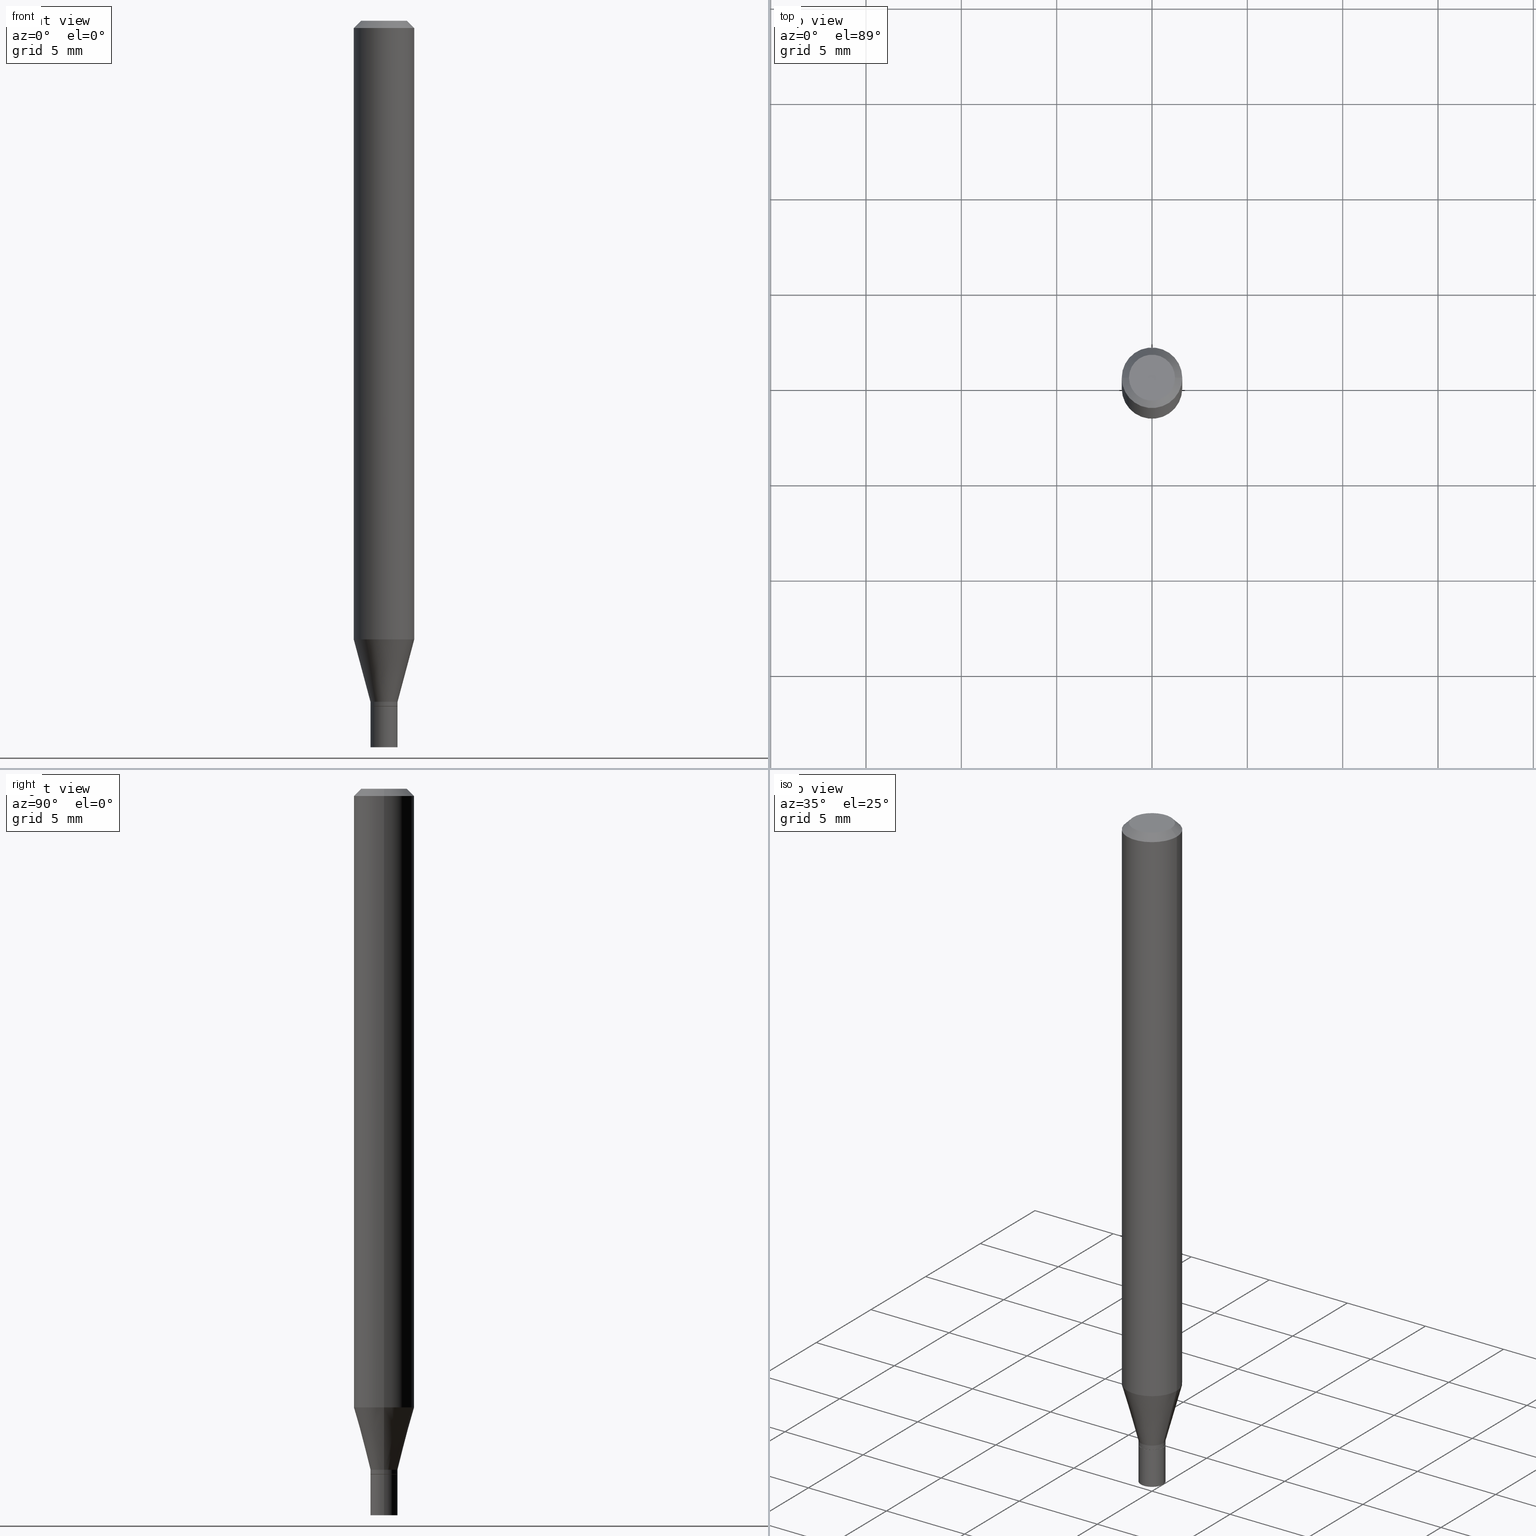
[diagram: canonical four-view strip — front | top / right | iso, engineering-drawing reading convention]
A machine part, canonical four-view strip (front | top / right | iso — engineering-drawing reading convention). The complete STEP part file that produces these views, byte-faithful:
ISO-10303-21;
HEADER;
FILE_DESCRIPTION (( 'STEP AP203' ),
    '1' );
FILE_NAME ('02383.STEP',
    '2024-03-18T20:19:42',
    ( '' ),
    ( '' ),
    'SwSTEP 2.0',
    'SolidWorks 2023',
    '' );
FILE_SCHEMA (( 'CONFIG_CONTROL_DESIGN' ));
ENDSEC;

DATA;
#1 = FACE_OUTER_BOUND ( 'NONE', #115, .T. ) ;
#2 = VERTEX_POINT ( 'NONE', #224 ) ;
#3 = AXIS2_PLACEMENT_3D ( 'NONE', #36, #214, #8 ) ;
#4 = CC_DESIGN_PERSON_AND_ORGANIZATION_ASSIGNMENT ( #267, #231, ( #449 ) ) ;
#5 = ORIENTED_EDGE ( 'NONE', *, *, #314, .T. ) ;
#6 = DIRECTION ( 'NONE',  ( -2.445468806185136597E-29, 3.491481338843145583E-15, 1.000000000000000000 ) ) ;
#7 = ORIENTED_EDGE ( 'NONE', *, *, #46, .F. ) ;
#8 = DIRECTION ( 'NONE',  ( 1.000000000000000000, -6.982962677686282488E-15, 0.000000000000000000 ) ) ;
#9 = EDGE_CURVE ( 'NONE', #343, #141, #258, .T. ) ;
#10 = VERTEX_POINT ( 'NONE', #296 ) ;
#11 = AXIS2_PLACEMENT_3D ( 'NONE', #286, #392, #243 ) ;
#12 = CYLINDRICAL_SURFACE ( 'NONE', #31, 0.02799999999999993119 ) ;
#13 = DIRECTION ( 'NONE',  ( -2.445468806185136597E-29, 3.491481338843145583E-15, 1.000000000000000000 ) ) ;
#14 = CALENDAR_DATE ( 2024, 18, 3 ) ;
#15 = LINE ( 'NONE', #414, #88 ) ;
#16 = DATE_TIME_ROLE ( 'creation_date' ) ;
#17 = DIRECTION ( 'NONE',  ( 1.000000000000000000, -6.982962677686280910E-15, 0.000000000000000000 ) ) ;
#18 = EDGE_CURVE ( 'NONE', #299, #333, #218, .T. ) ;
#19 = AXIS2_PLACEMENT_3D ( 'NONE', #268, #403, #73 ) ;
#20 = CIRCLE ( 'NONE', #260, 0.02799999999999993119 ) ;
#21 = DIRECTION ( 'NONE',  ( -2.445468806185136597E-29, 3.491481338843145583E-15, 1.000000000000000000 ) ) ;
#22 = DIRECTION ( 'NONE',  ( 1.000000000000000000, -6.982962677686262766E-15, 0.000000000000000000 ) ) ;
#23 = CARTESIAN_POINT ( 'NONE',  ( 3.316907271900976096E-16, 0.04749999999999999362, -1.076740139133766305E-16 ) ) ;
#24 = DIRECTION ( 'NONE',  ( 1.000000000000000000, -6.982962677686266711E-15, 4.876176775795935793E-29 ) ) ;
#25 = AXIS2_PLACEMENT_3D ( 'NONE', #239, #415, #234 ) ;
#26 = CARTESIAN_POINT ( 'NONE',  ( -2.845124421204368749E-45, 4.062083637377592914E-31, 1.163426993633455566E-16 ) ) ;
#27 = ORIENTED_EDGE ( 'NONE', *, *, #38, .F. ) ;
#28 = DIRECTION ( 'NONE',  ( -2.445468806185136597E-29, 3.491481338843145583E-15, 1.000000000000000000 ) ) ;
#29 = APPROVAL ( #156, 'UNSPECIFIED' ) ;
#30 = FACE_OUTER_BOUND ( 'NONE', #205, .T. ) ;
#31 = AXIS2_PLACEMENT_3D ( 'NONE', #404, #150, #335 ) ;
#32 = DIRECTION ( 'NONE',  ( -2.445468806185136877E-29, 3.491481338843145188E-15, 1.000000000000000000 ) ) ;
#33 = ORIENTED_EDGE ( 'NONE', *, *, #128, .F. ) ;
#34 = EDGE_LOOP ( 'NONE', ( #253, #379, #65, #97 ) ) ;
#35 = AXIS2_PLACEMENT_3D ( 'NONE', #345, #315, #160 ) ;
#36 = CARTESIAN_POINT ( 'NONE',  ( 3.461561095155061243E-29, -4.942191835132473030E-15, -1.415500000000000203 ) ) ;
#37 = VERTEX_POINT ( 'NONE', #221 ) ;
#38 = EDGE_CURVE ( 'NONE', #343, #37, #15, .T. ) ;
#39 = MECHANICAL_CONTEXT ( 'NONE', #371, 'mechanical' ) ;
#40 = ORIENTED_EDGE ( 'NONE', *, *, #402, .F. ) ;
#41 = VERTEX_POINT ( 'NONE', #84 ) ;
#42 = PERSON_AND_ORGANIZATION_ROLE ( 'creator' ) ;
#43 = ORIENTED_EDGE ( 'NONE', *, *, #389, .T. ) ;
#44 = APPROVAL_STATUS ( 'not_yet_approved' ) ;
#45 = CARTESIAN_POINT ( 'NONE',  ( 0.000000000000000000, 0.000000000000000000, 0.000000000000000000 ) ) ;
#46 = EDGE_CURVE ( 'NONE', #227, #2, #380, .T. ) ;
#47 = EDGE_CURVE ( 'NONE', #299, #440, #417, .T. ) ;
#48 = APPROVAL_DATE_TIME ( #452, #308 ) ;
#49 = DIRECTION ( 'NONE',  ( 1.000000000000000000, -6.982962677686262766E-15, 0.000000000000000000 ) ) ;
#50 = LOCAL_TIME ( 16, 19, 42.00000000000000000, #316 ) ;
#51 = AXIS2_PLACEMENT_3D ( 'NONE', #62, #28, #211 ) ;
#52 = APPROVAL_STATUS ( 'not_yet_approved' ) ;
#53 = DIRECTION ( 'NONE',  ( -2.445468806185136597E-29, 3.491481338843145583E-15, 1.000000000000000000 ) ) ;
#54 = DATE_AND_TIME ( #413, #50 ) ;
#55 = FACE_OUTER_BOUND ( 'NONE', #213, .T. ) ;
#56 = DIRECTION ( 'NONE',  ( -0.7071067811865447972, 2.468850131082228662E-15, -0.7071067811865501263 ) ) ;
#57 = CC_DESIGN_DATE_AND_TIME_ASSIGNMENT ( #54, #235, ( #289 ) ) ;
#58 = CYLINDRICAL_SURFACE ( 'NONE', #278, 0.06250000000000000000 ) ;
#59 = CIRCLE ( 'NONE', #74, 0.06250000000000000000 ) ;
#60 = DESIGN_CONTEXT ( 'detailed design', #101, 'design' ) ;
#61 = ORIENTED_EDGE ( 'NONE', *, *, #463, .F. ) ;
#62 = CARTESIAN_POINT ( 'NONE',  ( 3.462783829558154044E-29, -4.943937575801894533E-15, -1.416000000000000147 ) ) ;
#63 = CC_DESIGN_PERSON_AND_ORGANIZATION_ASSIGNMENT ( #83, #192, ( #289 ) ) ;
#64 = CARTESIAN_POINT ( 'NONE',  ( 3.438329141496302499E-29, -4.909022762413463673E-15, -1.406000000000000139 ) ) ;
#65 = ORIENTED_EDGE ( 'NONE', *, *, #18, .F. ) ;
#66 = DIRECTION ( 'NONE',  ( 0.7071067811865447972, -7.319954787623245001E-15, -0.7071067811865501263 ) ) ;
#67 = AXIS2_PLACEMENT_3D ( 'NONE', #288, #427, #204 ) ;
#68 = MANIFOLD_SOLID_BREP ( 'Body-Move/Copy2[2]', #181 ) ;
#69 = DIRECTION ( 'NONE',  ( 1.000000000000000000, -6.982962677686262766E-15, 0.000000000000000000 ) ) ;
#70 = CARTESIAN_POINT ( 'NONE',  ( 3.461561095155061243E-29, -4.942191835132473030E-15, -1.415500000000000203 ) ) ;
#71 = ORIENTED_EDGE ( 'NONE', *, *, #389, .F. ) ;
#72 = CARTESIAN_POINT ( 'NONE',  ( 1.955229549752501107E-16, 0.02799999999999506009, -1.416000000000000147 ) ) ;
#73 = DIRECTION ( 'NONE',  ( 1.000000000000000000, -6.982962677686280910E-15, 0.000000000000000000 ) ) ;
#74 = AXIS2_PLACEMENT_3D ( 'NONE', #384, #53, #22 ) ;
#75 = CIRCLE ( 'NONE', #51, 0.02750000000000000014 ) ;
#76 = VERTEX_POINT ( 'NONE', #443 ) ;
#77 = ORIENTED_EDGE ( 'NONE', *, *, #331, .T. ) ;
#78 = PERSON_AND_ORGANIZATION ( #293, #173 ) ;
#79 = EDGE_LOOP ( 'NONE', ( #410, #338, #292, #105 ) ) ;
#80 = CIRCLE ( 'NONE', #220, 0.06250000000000000000 ) ;
#81 = FACE_OUTER_BOUND ( 'NONE', #357, .T. ) ;
#82 = ADVANCED_FACE ( 'NONE', ( #81 ), #119, .T. ) ;
#83 = PERSON_AND_ORGANIZATION ( #293, #173 ) ;
#84 = CARTESIAN_POINT ( 'NONE',  ( 0.04749999999999999362, -4.035134999187576651E-16, 1.163426993633481204E-16 ) ) ;
#85 = COORDINATED_UNIVERSAL_TIME_OFFSET ( 5, 0, .BEHIND. ) ;
#86 = CARTESIAN_POINT ( 'NONE',  ( 0.000000000000000000, 0.000000000000000000, 0.000000000000000000 ) ) ;
#87 = ADVANCED_FACE ( 'NONE', ( #270 ), #381, .F. ) ;
#88 = VECTOR ( 'NONE', #154, 39.37007874015748143 ) ;
#89 = AXIS2_PLACEMENT_3D ( 'NONE', #291, #6, #369 ) ;
#90 = FACE_OUTER_BOUND ( 'NONE', #79, .T. ) ;
#91 = DIRECTION ( 'NONE',  ( 2.438088387897960049E-29, -3.491481338843145188E-15, -1.000000000000000000 ) ) ;
#92 = FACE_OUTER_BOUND ( 'NONE', #34, .T. ) ;
#93 = ORIENTED_EDGE ( 'NONE', *, *, #402, .T. ) ;
#94 = CARTESIAN_POINT ( 'NONE',  ( 0.000000000000000000, 0.000000000000000000, 0.000000000000000000 ) ) ;
#95 = CONICAL_SURFACE ( 'NONE', #131, 0.02750000000000000014, 0.7853981633974739252 ) ;
#96 = DIRECTION ( 'NONE',  ( -2.445468806185136597E-29, 3.491481338843145583E-15, 1.000000000000000000 ) ) ;
#97 = ORIENTED_EDGE ( 'NONE', *, *, #353, .F. ) ;
#98 = DIRECTION ( 'NONE',  ( 2.445468806185136597E-29, -3.491481338843145583E-15, -1.000000000000000000 ) ) ;
#99 = ORIENTED_EDGE ( 'NONE', *, *, #215, .F. ) ;
#100 = EDGE_CURVE ( 'NONE', #2, #10, #103, .T. ) ;
#101 = APPLICATION_CONTEXT ( 'configuration controlled 3d designs of mechanical parts and assemblies' ) ;
#102 = DIRECTION ( 'NONE',  ( -2.445468806185136597E-29, 3.491481338843145583E-15, 1.000000000000000000 ) ) ;
#103 = CIRCLE ( 'NONE', #396, 0.02800000000000000405 ) ;
#104 = AXIS2_PLACEMENT_3D ( 'NONE', #374, #116, #69 ) ;
#105 = ORIENTED_EDGE ( 'NONE', *, *, #304, .F. ) ;
#106 = ORIENTED_EDGE ( 'NONE', *, *, #431, .F. ) ;
#107 = DIRECTION ( 'NONE',  ( 1.000000000000000000, -6.982962677686262766E-15, 0.000000000000000000 ) ) ;
#108 = VERTEX_POINT ( 'NONE', #276 ) ;
#109 = DIRECTION ( 'NONE',  ( -2.445468806185136597E-29, 3.491481338843145583E-15, 1.000000000000000000 ) ) ;
#110 = CC_DESIGN_PERSON_AND_ORGANIZATION_ASSIGNMENT ( #269, #161, ( #247 ) ) ;
#111 = ORIENTED_EDGE ( 'NONE', *, *, #353, .T. ) ;
#112 = VECTOR ( 'NONE', #168, 39.37007874015748143 ) ;
#113 =( GEOMETRIC_REPRESENTATION_CONTEXT ( 3 ) GLOBAL_UNCERTAINTY_ASSIGNED_CONTEXT ( ( #212 ) ) GLOBAL_UNIT_ASSIGNED_CONTEXT ( ( #341, #256, #429 ) ) REPRESENTATION_CONTEXT ( 'NONE', 'WORKASPACE' ) );
#114 = CARTESIAN_POINT ( 'NONE',  ( 0.06250000000000000000, -4.895909621385532005E-15, -1.277244247138873634 ) ) ;
#115 = EDGE_LOOP ( 'NONE', ( #262, #241, #179, #245 ) ) ;
#116 = DIRECTION ( 'NONE',  ( -2.445468806185136597E-29, 3.491481338843145583E-15, 1.000000000000000000 ) ) ;
#117 = ORIENTED_EDGE ( 'NONE', *, *, #358, .F. ) ;
#118 = COORDINATED_UNIVERSAL_TIME_OFFSET ( 5, 0, .BEHIND. ) ;
#119 = CYLINDRICAL_SURFACE ( 'NONE', #340, 0.02799999999999993119 ) ;
#120 = AXIS2_PLACEMENT_3D ( 'NONE', #312, #451, #17 ) ;
#121 = PERSON_AND_ORGANIZATION ( #293, #173 ) ;
#122 = DIRECTION ( 'NONE',  ( -2.445468806185136597E-29, 3.491481338843145583E-15, 1.000000000000000000 ) ) ;
#123 = DIRECTION ( 'NONE',  ( 1.000000000000000000, -6.982962677686266711E-15, 4.876176775795935232E-29 ) ) ;
#124 = DIRECTION ( 'NONE',  ( -2.438088387897960049E-29, 3.491481338843145188E-15, 1.000000000000000000 ) ) ;
#125 = CONICAL_SURFACE ( 'NONE', #120, 0.02799999999999993119, 0.2617993877991491858 ) ;
#126 = CARTESIAN_POINT ( 'NONE',  ( -0.02799999999999993119, 1.989519660128275631E-16, -1.377301825271370218E-30 ) ) ;
#127 = LINE ( 'NONE', #280, #112 ) ;
#128 = EDGE_CURVE ( 'NONE', #108, #76, #250, .T. ) ;
#129 = DIRECTION ( 'NONE',  ( 1.000000000000000000, -6.982962677686266711E-15, 0.000000000000000000 ) ) ;
#130 = AXIS2_PLACEMENT_3D ( 'NONE', #188, #13, #182 ) ;
#131 = AXIS2_PLACEMENT_3D ( 'NONE', #172, #96, #361 ) ;
#132 = CARTESIAN_POINT ( 'NONE',  ( 0.02799999999999993119, -5.104545717388679172E-15, -1.406000000000000139 ) ) ;
#133 = CARTESIAN_POINT ( 'NONE',  ( 3.668203209277705088E-31, -5.237222008264718399E-17, -0.01499999999999999944 ) ) ;
#134 = EDGE_CURVE ( 'NONE', #135, #333, #162, .T. ) ;
#135 = VERTEX_POINT ( 'NONE', #347 ) ;
#136 = CARTESIAN_POINT ( 'NONE',  ( 3.576687321579069994E-29, -5.368277968210015545E-15, -1.500000000000000222 ) ) ;
#137 = ORIENTED_EDGE ( 'NONE', *, *, #431, .T. ) ;
#138 = ADVANCED_FACE ( 'NONE', ( #90 ), #196, .T. ) ;
#139 = CARTESIAN_POINT ( 'NONE',  ( -0.02800000000000000405, -4.891627826020478915E-15, -1.500000000000000222 ) ) ;
#140 = VECTOR ( 'NONE', #56, 39.37007874015748854 ) ;
#141 = VERTEX_POINT ( 'NONE', #195 ) ;
#142 = ORIENTED_EDGE ( 'NONE', *, *, #273, .T. ) ;
#143 = ADVANCED_FACE ( 'NONE', ( #348 ), #125, .T. ) ;
#144 = CARTESIAN_POINT ( 'NONE',  ( 3.438329141496302499E-29, -4.909022762413463673E-15, -1.406000000000000139 ) ) ;
#145 = ADVANCED_FACE ( 'NONE', ( #55 ), #453, .T. ) ;
#146 = ORIENTED_EDGE ( 'NONE', *, *, #9, .T. ) ;
#147 = CARTESIAN_POINT ( 'NONE',  ( 3.668203209277704895E-29, -5.237222008264718177E-15, -1.500000000000000222 ) ) ;
#148 = ORIENTED_EDGE ( 'NONE', *, *, #38, .T. ) ;
#149 = VECTOR ( 'NONE', #32, 39.37007874015748143 ) ;
#150 = DIRECTION ( 'NONE',  ( -2.445468806185136597E-29, 3.491481338843145583E-15, 1.000000000000000000 ) ) ;
#151 = VERTEX_POINT ( 'NONE', #446 ) ;
#152 = ADVANCED_FACE ( 'NONE', ( #274 ), #448, .T. ) ;
#153 = DATE_AND_TIME ( #383, #249 ) ;
#154 = DIRECTION ( 'NONE',  ( 0.7071067811865656694, -2.468850131082446387E-15, 0.7071067811865294761 ) ) ;
#155 = APPROVAL_PERSON_ORGANIZATION ( #344, #29, #447 ) ;
#156 = APPROVAL_STATUS ( 'not_yet_approved' ) ;
#157 = CARTESIAN_POINT ( 'NONE',  ( 0.02799999999999993119, -5.104545717388679172E-15, -1.406000000000000139 ) ) ;
#158 = VECTOR ( 'NONE', #202, 39.37007874015748143 ) ;
#159 = ADVANCED_FACE ( 'NONE', ( #386 ), #275, .F. ) ;
#160 = DIRECTION ( 'NONE',  ( -1.000000000000000000, 6.982962677686266711E-15, 0.000000000000000000 ) ) ;
#161 = PERSON_AND_ORGANIZATION_ROLE ( 'creator' ) ;
#162 = LINE ( 'NONE', #126, #411 ) ;
#163 = PERSON_AND_ORGANIZATION ( #293, #173 ) ;
#164 = CARTESIAN_POINT ( 'NONE',  ( 3.462783829558154044E-29, -4.943937575801894533E-15, -1.416000000000000147 ) ) ;
#165 = AXIS2_PLACEMENT_3D ( 'NONE', #147, #109, #107 ) ;
#166 = CARTESIAN_POINT ( 'NONE',  ( 0.02750000000000000014, -5.135969049438267025E-15, -1.416000000000000147 ) ) ;
#167 = EDGE_CURVE ( 'NONE', #10, #2, #283, .T. ) ;
#168 = DIRECTION ( 'NONE',  ( -0.2588190451025205174, 5.211531920934544731E-15, 0.9659258262890684232 ) ) ;
#169 = ORIENTED_EDGE ( 'NONE', *, *, #438, .F. ) ;
#170 = CARTESIAN_POINT ( 'NONE',  ( -0.02799999999999993119, -4.362728020290356187E-15, -1.406000000000000139 ) ) ;
#171 = CIRCLE ( 'NONE', #326, 0.04749999999999999362 ) ;
#172 = CARTESIAN_POINT ( 'NONE',  ( 3.462783829558154044E-29, -4.943937575801894533E-15, -1.416000000000000147 ) ) ;
#173 = ORGANIZATION ( 'UNSPECIFIED', 'UNSPECIFIED', '' ) ;
#174 = DIMENSIONAL_EXPONENTS ( 1.000000000000000000, 0.000000000000000000, 0.000000000000000000, 0.000000000000000000, 0.000000000000000000, 0.000000000000000000, 0.000000000000000000 ) ;
#175 = DIRECTION ( 'NONE',  ( -2.445468806185136877E-29, 3.491481338843145188E-15, 1.000000000000000000 ) ) ;
#176 = PRODUCT_RELATED_PRODUCT_CATEGORY ( 'detail', '', ( #449 ) ) ;
#177 = LOCAL_TIME ( 16, 19, 42.00000000000000000, #118 ) ;
#178 = DIRECTION ( 'NONE',  ( -2.445468806185136597E-29, 3.491481338843145583E-15, 1.000000000000000000 ) ) ;
#179 = ORIENTED_EDGE ( 'NONE', *, *, #183, .F. ) ;
#180 =( LENGTH_UNIT ( ) NAMED_UNIT ( * ) SI_UNIT ( $, .METRE. ) );
#181 = CLOSED_SHELL ( 'NONE', ( #377, #408, #138, #145, #420, #143, #263, #246, #159, #87, #187, #82 ) ) ;
#182 = DIRECTION ( 'NONE',  ( 1.000000000000000000, -6.982962677686279332E-15, 0.000000000000000000 ) ) ;
#183 = EDGE_CURVE ( 'NONE', #440, #151, #59, .T. ) ;
#184 = LENGTH_MEASURE_WITH_UNIT ( LENGTH_MEASURE( 0.02539999999999999897 ), #180 );
#185 = VERTEX_POINT ( 'NONE', #387 ) ;
#186 = ORIENTED_EDGE ( 'NONE', *, *, #46, .T. ) ;
#187 = ADVANCED_FACE ( 'NONE', ( #30 ), #95, .T. ) ;
#188 = CARTESIAN_POINT ( 'NONE',  ( 3.462783829558154044E-29, -4.943937575801894533E-15, -1.416000000000000147 ) ) ;
#189 = CIRCLE ( 'NONE', #290, 0.02799999999999992426 ) ;
#190 = CALENDAR_DATE ( 2024, 18, 3 ) ;
#191 = DIRECTION ( 'NONE',  ( 0.2588190451025205174, 1.565188264969628476E-15, 0.9659258262890684232 ) ) ;
#192 = PERSON_AND_ORGANIZATION_ROLE ( 'classification_officer' ) ;
#193 = CARTESIAN_POINT ( 'NONE',  ( 3.462783829558154044E-29, -4.943937575801894533E-15, -1.416000000000000147 ) ) ;
#194 = ADVANCED_FACE ( 'NONE', ( #459 ), #328, .F. ) ;
#195 = CARTESIAN_POINT ( 'NONE',  ( -0.02750000000000000014, -4.745889096293755213E-15, -1.416000000000000147 ) ) ;
#196 = CONICAL_SURFACE ( 'NONE', #35, 0.06250000000000000000, 0.7853981633974445042 ) ;
#197 = LOCAL_TIME ( 16, 19, 42.00000000000000000, #85 ) ;
#198 = COORDINATED_UNIVERSAL_TIME_OFFSET ( 5, 0, .BEHIND. ) ;
#199 = DIRECTION ( 'NONE',  ( 1.000000000000000000, -6.982962677686266711E-15, 0.000000000000000000 ) ) ;
#200 = COORDINATED_UNIVERSAL_TIME_OFFSET ( 5, 0, .BEHIND. ) ;
#201 = DIRECTION ( 'NONE',  ( 1.000000000000000000, -6.982962677686266711E-15, 4.876176775795935232E-29 ) ) ;
#202 = DIRECTION ( 'NONE',  ( -2.445468806185136877E-29, 3.491481338843145188E-15, 1.000000000000000000 ) ) ;
#203 = VECTOR ( 'NONE', #175, 39.37007874015748143 ) ;
#204 = DIRECTION ( 'NONE',  ( 1.000000000000000000, -6.982962677686267499E-15, 4.884662768193073002E-29 ) ) ;
#205 = EDGE_LOOP ( 'NONE', ( #61, #5, #148, #71 ) ) ;
#206 = DIRECTION ( 'NONE',  ( 1.000000000000000000, -6.982962677686265922E-15, 4.876176775795935793E-29 ) ) ;
#207 = CARTESIAN_POINT ( 'NONE',  ( -0.06250000000000000000, 3.840629472727444916E-16, -0.01499999999999999944 ) ) ;
#208 = EDGE_LOOP ( 'NONE', ( #329, #306, #370, #458 ) ) ;
#209 = EDGE_CURVE ( 'NONE', #151, #440, #390, .T. ) ;
#210 = AXIS2_PLACEMENT_3D ( 'NONE', #144, #178, #397 ) ;
#211 = DIRECTION ( 'NONE',  ( 1.000000000000000000, -6.982962677686279332E-15, 0.000000000000000000 ) ) ;
#212 = UNCERTAINTY_MEASURE_WITH_UNIT (LENGTH_MEASURE( 1.000000000000000082E-05 ), #341, 'distance_accuracy_value', 'NONE');
#213 = EDGE_LOOP ( 'NONE', ( #321, #77, #33, #99 ) ) ;
#214 = DIRECTION ( 'NONE',  ( -2.445468806185136597E-29, 3.491481338843145583E-15, 1.000000000000000000 ) ) ;
#215 = EDGE_CURVE ( 'NONE', #440, #108, #330, .T. ) ;
#216 = ORIENTED_EDGE ( 'NONE', *, *, #304, .T. ) ;
#217 = CC_DESIGN_PERSON_AND_ORGANIZATION_ASSIGNMENT ( #163, #233, ( #247 ) ) ;
#218 = CIRCLE ( 'NONE', #19, 0.02799999999999993119 ) ;
#219 = PLANE ( 'NONE',  #418 ) ;
#220 = AXIS2_PLACEMENT_3D ( 'NONE', #133, #102, #129 ) ;
#221 = CARTESIAN_POINT ( 'NONE',  ( 0.02799999999999992426, -5.137714790107688529E-15, -1.415500000000000203 ) ) ;
#222 = ORIENTED_EDGE ( 'NONE', *, *, #277, .T. ) ;
#223 = CARTESIAN_POINT ( 'NONE',  ( 0.000000000000000000, 0.000000000000000000, 0.000000000000000000 ) ) ;
#224 = CARTESIAN_POINT ( 'NONE',  ( 0.02800000000000000405, -5.139460530777110033E-15, -1.416000000000000147 ) ) ;
#225 = APPROVAL_DATE_TIME ( #346, #266 ) ;
#226 = CC_DESIGN_PERSON_AND_ORGANIZATION_ASSIGNMENT ( #121, #42, ( #416 ) ) ;
#227 = VERTEX_POINT ( 'NONE', #425 ) ;
#228 = VECTOR ( 'NONE', #232, 39.37007874015748143 ) ;
#229 = AXIS2_PLACEMENT_3D ( 'NONE', #23, #91, #351 ) ;
#230 = DIRECTION ( 'NONE',  ( -2.445468806185136877E-29, 3.491481338843145188E-15, 1.000000000000000000 ) ) ;
#231 = PERSON_AND_ORGANIZATION_ROLE ( 'design_owner' ) ;
#232 = DIRECTION ( 'NONE',  ( -2.445468806185136877E-29, 3.491481338843145188E-15, 1.000000000000000000 ) ) ;
#233 = PERSON_AND_ORGANIZATION_ROLE ( 'design_supplier' ) ;
#234 = DIRECTION ( 'NONE',  ( 1.000000000000000000, -6.982962677686262766E-15, 0.000000000000000000 ) ) ;
#235 = DATE_TIME_ROLE ( 'classification_date' ) ;
#236 = DIRECTION ( 'NONE',  ( 1.000000000000000000, -6.982962677686266711E-15, 4.876176775795935793E-29 ) ) ;
#237 = EDGE_CURVE ( 'NONE', #41, #108, #388, .T. ) ;
#238 = ADVANCED_BREP_SHAPE_REPRESENTATION ( '02383', ( #382, #68, #385 ), #113 ) ;
#239 = CARTESIAN_POINT ( 'NONE',  ( 3.462783829558154044E-29, -4.943937575801894533E-15, -1.416000000000000147 ) ) ;
#240 = FACE_OUTER_BOUND ( 'NONE', #366, .T. ) ;
#241 = ORIENTED_EDGE ( 'NONE', *, *, #363, .T. ) ;
#242 = VECTOR ( 'NONE', #332, 39.37007874015748143 ) ;
#243 = DIRECTION ( 'NONE',  ( 1.000000000000000000, -6.982962677686266711E-15, 4.876176775795935232E-29 ) ) ;
#244 = CYLINDRICAL_SURFACE ( 'NONE', #11, 0.02800000000000000405 ) ;
#245 = ORIENTED_EDGE ( 'NONE', *, *, #47, .F. ) ;
#246 = ADVANCED_FACE ( 'NONE', ( #240 ), #271, .T. ) ;
#247 = PRODUCT_DEFINITION_FORMATION_WITH_SPECIFIED_SOURCE ( 'ANY', '', #449, .NOT_KNOWN. ) ;
#248 = CARTESIAN_POINT ( 'NONE',  ( 0.06250000000000000000, -4.811533449433679005E-16, -0.01499999999999999944 ) ) ;
#249 = LOCAL_TIME ( 16, 19, 42.00000000000000000, #200 ) ;
#250 = CIRCLE ( 'NONE', #318, 0.06250000000000000000 ) ;
#251 = CONICAL_SURFACE ( 'NONE', #210, 0.02799999999999993119, 0.2617993877991491858 ) ;
#252 = DIRECTION ( 'NONE',  ( -2.445468806185136597E-29, 3.491481338843145583E-15, 1.000000000000000000 ) ) ;
#253 = ORIENTED_EDGE ( 'NONE', *, *, #441, .T. ) ;
#254 = ADVANCED_FACE ( 'NONE', ( #462 ), #244, .T. ) ;
#255 = EDGE_LOOP ( 'NONE', ( #423, #336 ) ) ;
#256 =( NAMED_UNIT ( * ) PLANE_ANGLE_UNIT ( ) SI_UNIT ( $, .RADIAN. ) );
#257 = ORIENTED_EDGE ( 'NONE', *, *, #237, .F. ) ;
#258 = CIRCLE ( 'NONE', #130, 0.02750000000000000014 ) ;
#259 = CARTESIAN_POINT ( 'NONE',  ( -0.02750000000000000014, -4.748538323467866414E-15, -1.416000000000000147 ) ) ;
#260 = AXIS2_PLACEMENT_3D ( 'NONE', #64, #252, #281 ) ;
#261 = CC_DESIGN_APPROVAL ( #308, ( #416 ) ) ;
#262 = ORIENTED_EDGE ( 'NONE', *, *, #18, .T. ) ;
#263 = ADVANCED_FACE ( 'NONE', ( #394 ), #58, .T. ) ;
#264 = FACE_OUTER_BOUND ( 'NONE', #398, .T. ) ;
#265 = ORIENTED_EDGE ( 'NONE', *, *, #134, .F. ) ;
#266 = APPROVAL ( #52, 'UNSPECIFIED' ) ;
#267 = PERSON_AND_ORGANIZATION ( #293, #173 ) ;
#268 = CARTESIAN_POINT ( 'NONE',  ( 3.438329141496302499E-29, -4.909022762413463673E-15, -1.406000000000000139 ) ) ;
#269 = PERSON_AND_ORGANIZATION ( #293, #173 ) ;
#270 = FACE_OUTER_BOUND ( 'NONE', #255, .T. ) ;
#271 = CONICAL_SURFACE ( 'NONE', #424, 0.06250000000000000000, 0.7853981633974445042 ) ;
#272 = SECURITY_CLASSIFICATION_LEVEL ( 'unclassified' ) ;
#273 = EDGE_CURVE ( 'NONE', #41, #185, #461, .T. ) ;
#274 = FACE_OUTER_BOUND ( 'NONE', #367, .T. ) ;
#275 = PLANE ( 'NONE',  #229 ) ;
#276 = CARTESIAN_POINT ( 'NONE',  ( 0.06250000000000000000, -4.888073874380388472E-16, -0.01499999999999999944 ) ) ;
#277 = EDGE_CURVE ( 'NONE', #76, #108, #80, .T. ) ;
#278 = AXIS2_PLACEMENT_3D ( 'NONE', #94, #359, #24 ) ;
#279 = DIRECTION ( 'NONE',  ( -2.445468806185136597E-29, 3.491481338843145583E-15, 1.000000000000000000 ) ) ;
#280 = CARTESIAN_POINT ( 'NONE',  ( -0.02799999999999993119, -4.710070796400636233E-15, -1.406000000000000139 ) ) ;
#281 = DIRECTION ( 'NONE',  ( 1.000000000000000000, -6.982962677686280910E-15, 0.000000000000000000 ) ) ;
#282 = EDGE_LOOP ( 'NONE', ( #400, #395, #464, #437 ) ) ;
#283 = CIRCLE ( 'NONE', #25, 0.02800000000000000405 ) ;
#284 = DIRECTION ( 'NONE',  ( 1.000000000000000000, -6.982962677686262766E-15, 0.000000000000000000 ) ) ;
#285 = CC_DESIGN_DATE_AND_TIME_ASSIGNMENT ( #309, #16, ( #416 ) ) ;
#286 = CARTESIAN_POINT ( 'NONE',  ( 0.000000000000000000, 0.000000000000000000, 0.000000000000000000 ) ) ;
#287 = EDGE_LOOP ( 'NONE', ( #373, #142 ) ) ;
#288 = CARTESIAN_POINT ( 'NONE',  ( -2.845124421204368749E-45, 4.062083637377592914E-31, 1.163426993633455566E-16 ) ) ;
#289 = SECURITY_CLASSIFICATION ( '', '', #272 ) ;
#290 = AXIS2_PLACEMENT_3D ( 'NONE', #70, #337, #301 ) ;
#291 = CARTESIAN_POINT ( 'NONE',  ( 3.462783829558154044E-29, -4.943937575801894533E-15, -1.416000000000000147 ) ) ;
#292 = ORIENTED_EDGE ( 'NONE', *, *, #128, .T. ) ;
#293 = PERSON ( 'UNSPECIFIED', 'UNSPECIFIED', 'UNSPECIFIED', ('UNSPECIFIED'), ('UNSPECIFIED'), ('UNSPECIFIED') ) ;
#294 = DIRECTION ( 'NONE',  ( 0.000000000000000000, 0.000000000000000000, 1.000000000000000000 ) ) ;
#295 = LOCAL_TIME ( 16, 19, 42.00000000000000000, #198 ) ;
#296 = CARTESIAN_POINT ( 'NONE',  ( -0.02800000000000000405, -4.891627826020478915E-15, -1.416000000000000147 ) ) ;
#297 = CARTESIAN_POINT ( 'NONE',  ( -0.02800000000000000405, 1.989519660128280808E-16, -1.377301825271373721E-30 ) ) ;
#298 = EDGE_CURVE ( 'NONE', #333, #299, #20, .T. ) ;
#299 = VERTEX_POINT ( 'NONE', #132 ) ;
#300 = APPROVAL_PERSON_ORGANIZATION ( #78, #266, #311 ) ;
#301 = DIRECTION ( 'NONE',  ( 1.000000000000000000, -6.982962677686282488E-15, 0.000000000000000000 ) ) ;
#302 = CONICAL_SURFACE ( 'NONE', #89, 0.02750000000000000014, 0.7853981633974739252 ) ;
#303 = EDGE_LOOP ( 'NONE', ( #375, #339 ) ) ;
#304 = EDGE_CURVE ( 'NONE', #185, #76, #422, .T. ) ;
#305 = DIRECTION ( 'NONE',  ( 2.438088387897960049E-29, -3.491481338843145188E-15, -1.000000000000000000 ) ) ;
#306 = ORIENTED_EDGE ( 'NONE', *, *, #298, .T. ) ;
#307 = CARTESIAN_POINT ( 'NONE',  ( 0.02800000000000000405, -1.955229549752154995E-16, 1.365329497222862141E-30 ) ) ;
#308 = APPROVAL ( #44, 'UNSPECIFIED' ) ;
#309 = DATE_AND_TIME ( #190, #177 ) ;
#310 = DIRECTION ( 'NONE',  ( -2.445468806185136597E-29, 3.491481338843145583E-15, 1.000000000000000000 ) ) ;
#311 = APPROVAL_ROLE ( '' ) ;
#312 = CARTESIAN_POINT ( 'NONE',  ( 3.438329141496302499E-29, -4.909022762413463673E-15, -1.406000000000000139 ) ) ;
#313 = CC_DESIGN_SECURITY_CLASSIFICATION ( #289, ( #247 ) ) ;
#314 = EDGE_CURVE ( 'NONE', #141, #343, #75, .T. ) ;
#315 = DIRECTION ( 'NONE',  ( 2.445468806185136597E-29, -3.491481338843145583E-15, -1.000000000000000000 ) ) ;
#316 = COORDINATED_UNIVERSAL_TIME_OFFSET ( 5, 0, .BEHIND. ) ;
#317 = DIRECTION ( 'NONE',  ( 1.000000000000000000, -6.982962677686265922E-15, 4.876176775795935793E-29 ) ) ;
#318 = AXIS2_PLACEMENT_3D ( 'NONE', #419, #122, #199 ) ;
#319 = LINE ( 'NONE', #356, #203 ) ;
#320 = DIRECTION ( 'NONE',  ( -2.438088387897960049E-29, 3.491481338843145188E-15, 1.000000000000000000 ) ) ;
#321 = ORIENTED_EDGE ( 'NONE', *, *, #183, .T. ) ;
#322 = CC_DESIGN_APPROVAL ( #29, ( #247 ) ) ;
#323 = DIRECTION ( 'NONE',  ( -2.445468806185136597E-29, 3.491481338843145583E-15, 1.000000000000000000 ) ) ;
#324 = ORIENTED_EDGE ( 'NONE', *, *, #167, .F. ) ;
#325 = CLOSED_SHELL ( 'NONE', ( #152, #194, #254, #393 ) ) ;
#326 = AXIS2_PLACEMENT_3D ( 'NONE', #26, #323, #455 ) ;
#327 = APPROVAL_PERSON_ORGANIZATION ( #376, #308, #450 ) ;
#328 = PLANE ( 'NONE',  #342 ) ;
#329 = ORIENTED_EDGE ( 'NONE', *, *, #363, .F. ) ;
#330 = LINE ( 'NONE', #426, #158 ) ;
#331 = EDGE_CURVE ( 'NONE', #151, #76, #364, .T. ) ;
#332 = DIRECTION ( 'NONE',  ( -0.7071067811865656694, 7.493145998870420424E-15, 0.7071067811865294761 ) ) ;
#333 = VERTEX_POINT ( 'NONE', #170 ) ;
#334 = AXIS2_PLACEMENT_3D ( 'NONE', #352, #310, #236 ) ;
#335 = DIRECTION ( 'NONE',  ( 1.000000000000000000, -6.982962677686266711E-15, 4.876176775795935232E-29 ) ) ;
#336 = ORIENTED_EDGE ( 'NONE', *, *, #314, .F. ) ;
#337 = DIRECTION ( 'NONE',  ( -2.445468806185136597E-29, 3.491481338843145583E-15, 1.000000000000000000 ) ) ;
#338 = ORIENTED_EDGE ( 'NONE', *, *, #237, .T. ) ;
#339 = ORIENTED_EDGE ( 'NONE', *, *, #167, .T. ) ;
#340 = AXIS2_PLACEMENT_3D ( 'NONE', #45, #21, #201 ) ;
#341 =( CONVERSION_BASED_UNIT ( 'INCH', #184 ) LENGTH_UNIT ( ) NAMED_UNIT ( #174 ) );
#342 = AXIS2_PLACEMENT_3D ( 'NONE', #136, #320, #206 ) ;
#343 = VERTEX_POINT ( 'NONE', #166 ) ;
#344 = PERSON_AND_ORGANIZATION ( #293, #173 ) ;
#345 = CARTESIAN_POINT ( 'NONE',  ( 3.668203209277705088E-31, -5.237222008264718399E-17, -0.01499999999999999944 ) ) ;
#346 = DATE_AND_TIME ( #14, #295 ) ;
#347 = CARTESIAN_POINT ( 'NONE',  ( -0.02799999999999992426, -4.743239869119645590E-15, -1.415500000000000203 ) ) ;
#348 = FACE_OUTER_BOUND ( 'NONE', #208, .T. ) ;
#349 = AXIS2_PLACEMENT_3D ( 'NONE', #86, #279, #123 ) ;
#350 = SHAPE_DEFINITION_REPRESENTATION ( #444, #238 ) ;
#351 = DIRECTION ( 'NONE',  ( -1.000000000000000000, 6.982962677686265922E-15, -4.876176775795935793E-29 ) ) ;
#352 = CARTESIAN_POINT ( 'NONE',  ( 0.000000000000000000, 0.000000000000000000, 0.000000000000000000 ) ) ;
#353 = EDGE_CURVE ( 'NONE', #37, #299, #319, .T. ) ;
#354 = DIRECTION ( 'NONE',  ( -2.445468806185136597E-29, 3.491481338843145583E-15, 1.000000000000000000 ) ) ;
#355 = VECTOR ( 'NONE', #66, 39.37007874015748854 ) ;
#356 = CARTESIAN_POINT ( 'NONE',  ( 0.02799999999999993119, -1.955229549752149818E-16, 1.365329497222858463E-30 ) ) ;
#357 = EDGE_LOOP ( 'NONE', ( #265, #43, #111, #432 ) ) ;
#358 = EDGE_CURVE ( 'NONE', #185, #41, #171, .T. ) ;
#359 = DIRECTION ( 'NONE',  ( -2.445468806185136597E-29, 3.491481338843145583E-15, 1.000000000000000000 ) ) ;
#360 = ORIENTED_EDGE ( 'NONE', *, *, #441, .F. ) ;
#361 = DIRECTION ( 'NONE',  ( 1.000000000000000000, -6.982962677686279332E-15, 0.000000000000000000 ) ) ;
#362 = VECTOR ( 'NONE', #191, 39.37007874015748143 ) ;
#363 = EDGE_CURVE ( 'NONE', #333, #151, #127, .T. ) ;
#364 = LINE ( 'NONE', #391, #149 ) ;
#365 = EDGE_LOOP ( 'NONE', ( #40, #137, #186, #324 ) ) ;
#366 = EDGE_LOOP ( 'NONE', ( #257, #117, #216, #222 ) ) ;
#367 = EDGE_LOOP ( 'NONE', ( #405, #93, #434, #7 ) ) ;
#368 = AXIS2_PLACEMENT_3D ( 'NONE', #421, #354, #284 ) ;
#369 = DIRECTION ( 'NONE',  ( 1.000000000000000000, -6.982962677686279332E-15, 0.000000000000000000 ) ) ;
#370 = ORIENTED_EDGE ( 'NONE', *, *, #47, .T. ) ;
#371 = APPLICATION_CONTEXT ( 'configuration controlled 3d designs of mechanical parts and assemblies' ) ;
#372 = APPLICATION_PROTOCOL_DEFINITION ( 'international standard', 'config_control_design', 1994, #371 ) ;
#373 = ORIENTED_EDGE ( 'NONE', *, *, #358, .T. ) ;
#374 = CARTESIAN_POINT ( 'NONE',  ( 3.668203209277704895E-29, -5.237222008264718177E-15, -1.500000000000000222 ) ) ;
#375 = ORIENTED_EDGE ( 'NONE', *, *, #100, .T. ) ;
#376 = PERSON_AND_ORGANIZATION ( #293, #173 ) ;
#377 = ADVANCED_FACE ( 'NONE', ( #92 ), #12, .T. ) ;
#378 = CIRCLE ( 'NONE', #165, 0.02800000000000000405 ) ;
#379 = ORIENTED_EDGE ( 'NONE', *, *, #134, .T. ) ;
#380 = LINE ( 'NONE', #307, #228 ) ;
#381 = PLANE ( 'NONE',  #460 ) ;
#382 = MANIFOLD_SOLID_BREP ( 'Body-Move/Copy2[1]', #325 ) ;
#383 = CALENDAR_DATE ( 2024, 18, 3 ) ;
#384 = CARTESIAN_POINT ( 'NONE',  ( 3.123460964257534823E-29, -4.459474454030139547E-15, -1.277244247138873634 ) ) ;
#385 = AXIS2_PLACEMENT_3D ( 'NONE', #223, #294, #401 ) ;
#386 = FACE_OUTER_BOUND ( 'NONE', #287, .T. ) ;
#387 = CARTESIAN_POINT ( 'NONE',  ( -0.04749999999999999362, 3.578768372314212971E-16, 1.163426993633431407E-16 ) ) ;
#388 = LINE ( 'NONE', #248, #355 ) ;
#389 = EDGE_CURVE ( 'NONE', #135, #37, #189, .T. ) ;
#390 = CIRCLE ( 'NONE', #368, 0.06250000000000000000 ) ;
#391 = CARTESIAN_POINT ( 'NONE',  ( -0.06250000000000000000, 4.440892098500626162E-16, -3.074334431409316114E-30 ) ) ;
#392 = DIRECTION ( 'NONE',  ( -2.445468806185136597E-29, 3.491481338843145583E-15, 1.000000000000000000 ) ) ;
#393 = ADVANCED_FACE ( 'NONE', ( #433 ), #219, .F. ) ;
#394 = FACE_OUTER_BOUND ( 'NONE', #282, .T. ) ;
#395 = ORIENTED_EDGE ( 'NONE', *, *, #209, .T. ) ;
#396 = AXIS2_PLACEMENT_3D ( 'NONE', #193, #412, #49 ) ;
#397 = DIRECTION ( 'NONE',  ( 1.000000000000000000, -6.982962677686280910E-15, 0.000000000000000000 ) ) ;
#398 = EDGE_LOOP ( 'NONE', ( #146, #466, #360, #27 ) ) ;
#399 = DIRECTION ( 'NONE',  ( -2.445468806185136877E-29, 3.491481338843145188E-15, 1.000000000000000000 ) ) ;
#400 = ORIENTED_EDGE ( 'NONE', *, *, #331, .F. ) ;
#401 = DIRECTION ( 'NONE',  ( 1.000000000000000000, 0.000000000000000000, 0.000000000000000000 ) ) ;
#402 = EDGE_CURVE ( 'NONE', #407, #10, #436, .T. ) ;
#403 = DIRECTION ( 'NONE',  ( -2.445468806185136597E-29, 3.491481338843145583E-15, 1.000000000000000000 ) ) ;
#404 = CARTESIAN_POINT ( 'NONE',  ( 0.000000000000000000, 0.000000000000000000, 0.000000000000000000 ) ) ;
#405 = ORIENTED_EDGE ( 'NONE', *, *, #438, .T. ) ;
#406 = LINE ( 'NONE', #259, #242 ) ;
#407 = VERTEX_POINT ( 'NONE', #139 ) ;
#408 = ADVANCED_FACE ( 'NONE', ( #264 ), #302, .T. ) ;
#409 = APPLICATION_PROTOCOL_DEFINITION ( 'international standard', 'config_control_design', 1994, #101 ) ;
#410 = ORIENTED_EDGE ( 'NONE', *, *, #273, .F. ) ;
#411 = VECTOR ( 'NONE', #230, 39.37007874015748143 ) ;
#412 = DIRECTION ( 'NONE',  ( -2.445468806185136597E-29, 3.491481338843145583E-15, 1.000000000000000000 ) ) ;
#413 = CALENDAR_DATE ( 2024, 18, 3 ) ;
#414 = CARTESIAN_POINT ( 'NONE',  ( 0.02750000000000000014, -5.135969049438267025E-15, -1.416000000000000147 ) ) ;
#415 = DIRECTION ( 'NONE',  ( -2.445468806185136597E-29, 3.491481338843145583E-15, 1.000000000000000000 ) ) ;
#416 = PRODUCT_DEFINITION ( 'UNKNOWN', '', #247, #60 ) ;
#417 = LINE ( 'NONE', #157, #362 ) ;
#418 = AXIS2_PLACEMENT_3D ( 'NONE', #72, #305, #439 ) ;
#419 = CARTESIAN_POINT ( 'NONE',  ( 3.668203209277705088E-31, -5.237222008264718399E-17, -0.01499999999999999944 ) ) ;
#420 = ADVANCED_FACE ( 'NONE', ( #1 ), #251, .T. ) ;
#421 = CARTESIAN_POINT ( 'NONE',  ( 3.123460964257534823E-29, -4.459474454030139547E-15, -1.277244247138873634 ) ) ;
#422 = LINE ( 'NONE', #207, #140 ) ;
#423 = ORIENTED_EDGE ( 'NONE', *, *, #9, .F. ) ;
#424 = AXIS2_PLACEMENT_3D ( 'NONE', #465, #98, #457 ) ;
#425 = CARTESIAN_POINT ( 'NONE',  ( 0.02800000000000000405, -5.432744963239933676E-15, -1.500000000000000222 ) ) ;
#426 = CARTESIAN_POINT ( 'NONE',  ( 0.06250000000000000000, -4.364351673553916694E-16, 3.047610484872459871E-30 ) ) ;
#427 = DIRECTION ( 'NONE',  ( -2.445468806185136597E-29, 3.491481338843145583E-15, 1.000000000000000000 ) ) ;
#428 = CIRCLE ( 'NONE', #3, 0.02799999999999992426 ) ;
#429 =( NAMED_UNIT ( * ) SI_UNIT ( $, .STERADIAN. ) SOLID_ANGLE_UNIT ( ) );
#430 = EDGE_LOOP ( 'NONE', ( #169, #106 ) ) ;
#431 = EDGE_CURVE ( 'NONE', #407, #227, #454, .T. ) ;
#432 = ORIENTED_EDGE ( 'NONE', *, *, #298, .F. ) ;
#433 = FACE_OUTER_BOUND ( 'NONE', #303, .T. ) ;
#434 = ORIENTED_EDGE ( 'NONE', *, *, #100, .F. ) ;
#435 = VECTOR ( 'NONE', #399, 39.37007874015748143 ) ;
#436 = LINE ( 'NONE', #297, #435 ) ;
#437 = ORIENTED_EDGE ( 'NONE', *, *, #277, .F. ) ;
#438 = EDGE_CURVE ( 'NONE', #227, #407, #378, .T. ) ;
#439 = DIRECTION ( 'NONE',  ( -1.000000000000000000, 6.982962677686265922E-15, -4.876176775795935793E-29 ) ) ;
#440 = VERTEX_POINT ( 'NONE', #114 ) ;
#441 = EDGE_CURVE ( 'NONE', #37, #135, #428, .T. ) ;
#442 = CALENDAR_DATE ( 2024, 18, 3 ) ;
#443 = CARTESIAN_POINT ( 'NONE',  ( -0.06250000000000000000, -1.811834127206330894E-15, -0.01499999999999999944 ) ) ;
#444 = PRODUCT_DEFINITION_SHAPE ( 'NONE', 'NONE',  #416 ) ;
#445 = APPROVAL_DATE_TIME ( #153, #29 ) ;
#446 = CARTESIAN_POINT ( 'NONE',  ( -0.06250000000000000000, -4.015385244180077719E-15, -1.277244247138873634 ) ) ;
#447 = APPROVAL_ROLE ( '' ) ;
#448 = CYLINDRICAL_SURFACE ( 'NONE', #349, 0.02800000000000000405 ) ;
#449 = PRODUCT ( '02383', '02383', '', ( #39 ) ) ;
#450 = APPROVAL_ROLE ( '' ) ;
#451 = DIRECTION ( 'NONE',  ( -2.445468806185136597E-29, 3.491481338843145583E-15, 1.000000000000000000 ) ) ;
#452 = DATE_AND_TIME ( #442, #197 ) ;
#453 = CYLINDRICAL_SURFACE ( 'NONE', #334, 0.06250000000000000000 ) ;
#454 = CIRCLE ( 'NONE', #104, 0.02800000000000000405 ) ;
#455 = DIRECTION ( 'NONE',  ( 1.000000000000000000, -6.982962677686267499E-15, 4.884662768193073002E-29 ) ) ;
#456 = CC_DESIGN_APPROVAL ( #266, ( #289 ) ) ;
#457 = DIRECTION ( 'NONE',  ( -1.000000000000000000, 6.982962677686266711E-15, 0.000000000000000000 ) ) ;
#458 = ORIENTED_EDGE ( 'NONE', *, *, #209, .F. ) ;
#459 = FACE_OUTER_BOUND ( 'NONE', #430, .T. ) ;
#460 = AXIS2_PLACEMENT_3D ( 'NONE', #164, #124, #317 ) ;
#461 = CIRCLE ( 'NONE', #67, 0.04749999999999999362 ) ;
#462 = FACE_OUTER_BOUND ( 'NONE', #365, .T. ) ;
#463 = EDGE_CURVE ( 'NONE', #141, #135, #406, .T. ) ;
#464 = ORIENTED_EDGE ( 'NONE', *, *, #215, .T. ) ;
#465 = CARTESIAN_POINT ( 'NONE',  ( 3.668203209277705088E-31, -5.237222008264718399E-17, -0.01499999999999999944 ) ) ;
#466 = ORIENTED_EDGE ( 'NONE', *, *, #463, .T. ) ;
ENDSEC;
END-ISO-10303-21;
